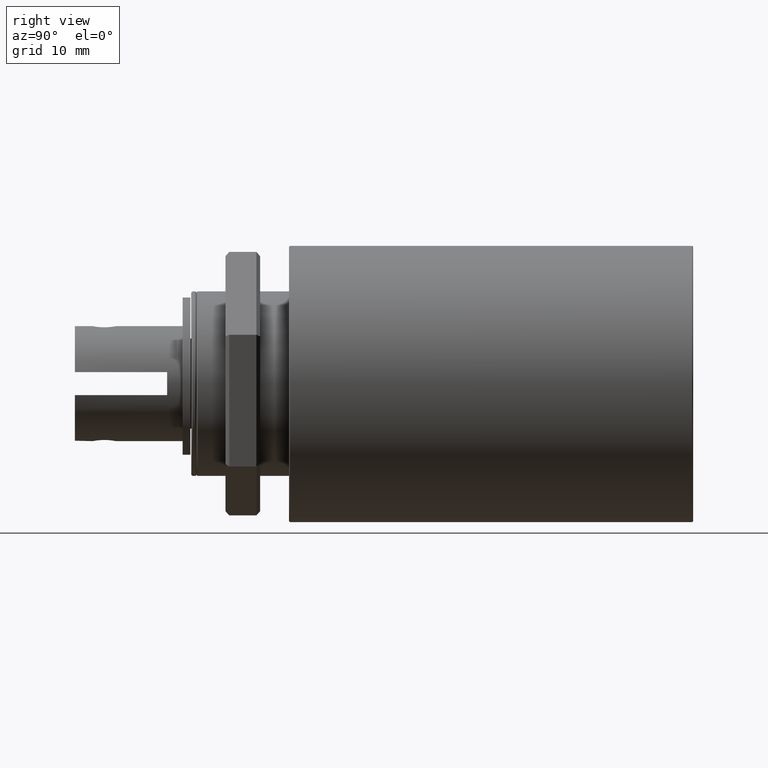
[diagram: clean part render]
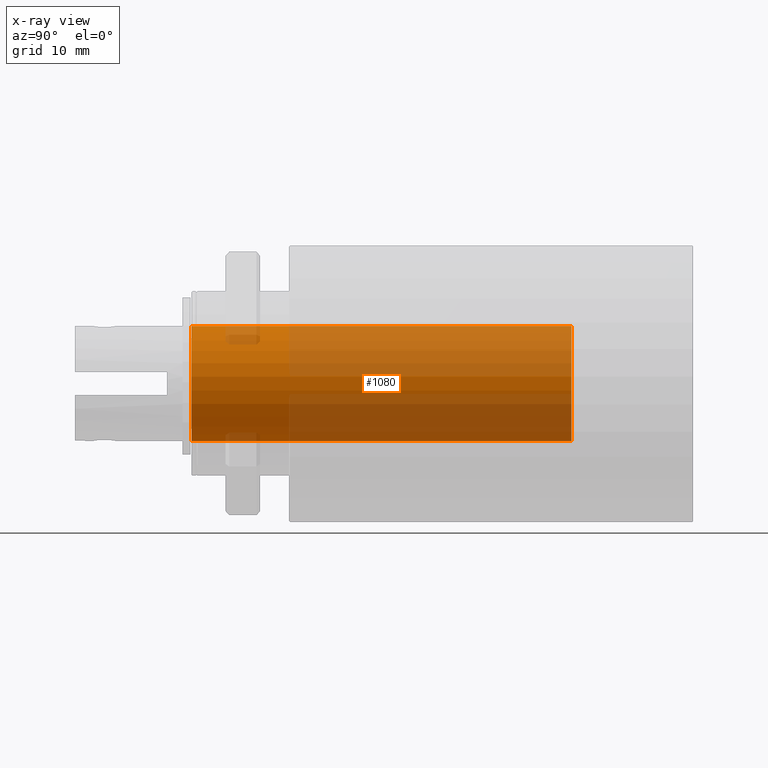
[diagram: x-ray — body ghosted, one internal face saturated and labeled with its STEP entity id]
A machine part, right view, then the same camera in x-ray: the body is ghosted and one INTERNAL B-rep face — a face not visible from any outside direction — is saturated and labeled: STEP entity #1080.
In plain terms, the highlighted cylindrical surface (bore or boss wall) has radius 7.9121 mm, axis along (-0, -1, 0).
Its self-contained STEP definition (entity closure, byte-faithful):
#73=CIRCLE('',#1231,0.0079121);
#74=CIRCLE('',#1232,0.0079121);
#118=CYLINDRICAL_SURFACE('',#1230,0.0079121);
#252=ORIENTED_EDGE('',*,*,#472,.F.);
#253=ORIENTED_EDGE('',*,*,#473,.T.);
#472=EDGE_CURVE('',#589,#589,#73,.T.);
#473=EDGE_CURVE('',#590,#590,#74,.T.);
#589=VERTEX_POINT('',#1821);
#590=VERTEX_POINT('',#1823);
#846=EDGE_LOOP('',(#252));
#847=EDGE_LOOP('',(#253));
#948=FACE_BOUND('',#846,.T.);
#949=FACE_BOUND('',#847,.T.);
#1080=ADVANCED_FACE('',(#948,#949),#118,.T.);
#1230=AXIS2_PLACEMENT_3D('',#1819,#1456,#1457);
#1231=AXIS2_PLACEMENT_3D('',#1820,#1458,#1459);
#1232=AXIS2_PLACEMENT_3D('',#1822,#1460,#1461);
#1456=DIRECTION('',(0.,0.,-1.));
#1457=DIRECTION('',(-1.,0.,0.));
#1458=DIRECTION('',(0.,0.,-1.));
#1459=DIRECTION('',(-1.,0.,0.));
#1460=DIRECTION('',(0.,0.,-1.));
#1461=DIRECTION('',(-1.,0.,0.));
#1819=CARTESIAN_POINT('',(0.,0.,0.0242510795972828));
#1820=CARTESIAN_POINT('',(0.,0.,-0.000743169806373116));
#1821=CARTESIAN_POINT('',(-0.0079121,0.,-0.000743169806373116));
#1822=CARTESIAN_POINT('',(0.,0.,0.051562));
#1823=CARTESIAN_POINT('',(-0.0079121,0.,0.051562));